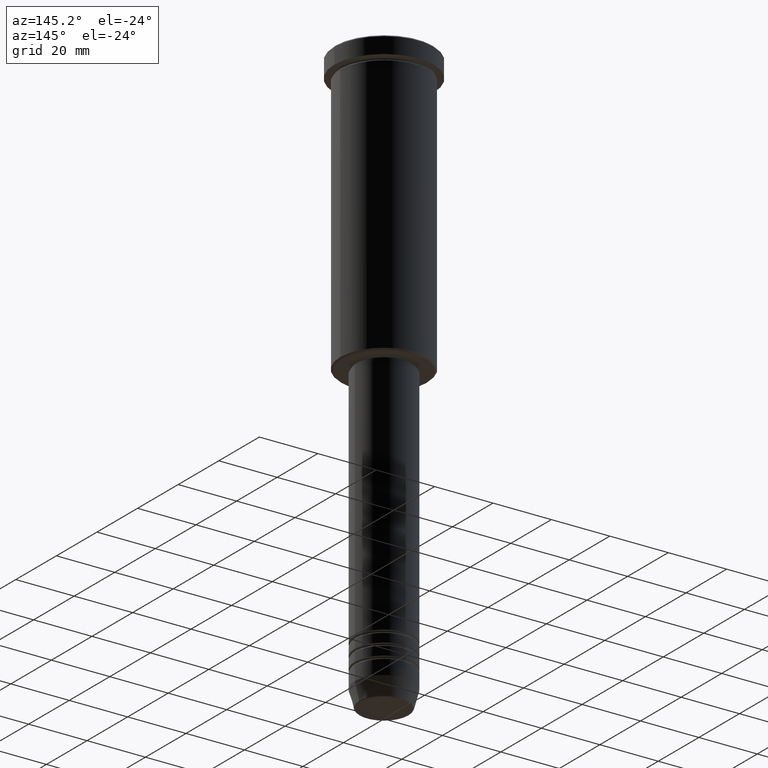
[diagram: clean part render]
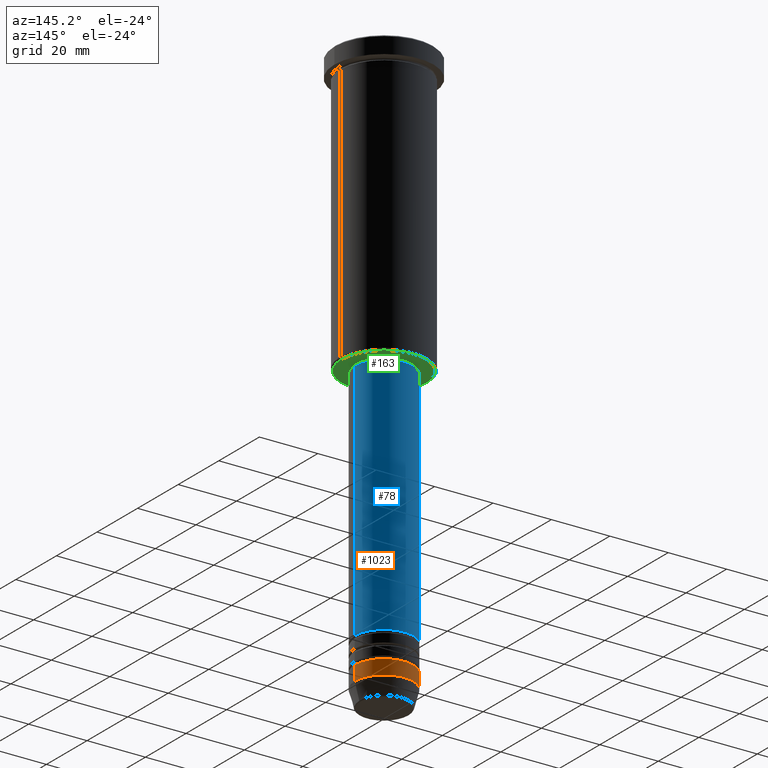
[diagram: same view with three faces highlighted in distinct colors, each labeled with its STEP entity id]
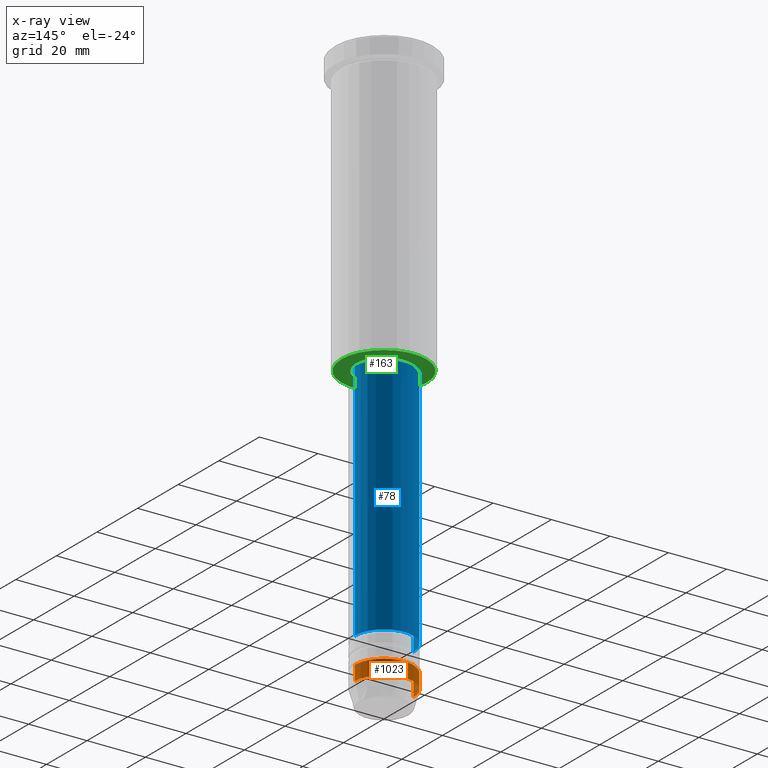
[diagram: x-ray of the same camera — body ghosted, the three highlighted faces saturated]
A machine part, auxiliary view with three faces highlighted in distinct colors.
The next image is the same camera in x-ray (body ghosted, the three faces saturated) — at least one of them is partly hidden behind the body in this view.
Their STEP definitions:

[orange] entity #1023 — the highlighted cylindrical surface (edge-blend (fillet) strip) has radius 10 mm, axis along (-0, -0, 1).
#56 = DIRECTION ( 'NONE',  ( -0.000000000000000000, -0.000000000000000000, 1.000000000000000000 ) ) ;
#77 = CARTESIAN_POINT ( 'NONE',  ( 10.00000000000000000, 0.000000000000000000, -189.0000000000000284 ) ) ;
#93 = DIRECTION ( 'NONE',  ( -0.000000000000000000, -0.000000000000000000, 1.000000000000000000 ) ) ;
#115 = ORIENTED_EDGE ( 'NONE', *, *, #417, .T. ) ;
#116 = DIRECTION ( 'NONE',  ( -0.000000000000000000, -0.000000000000000000, 1.000000000000000000 ) ) ;
#146 = VERTEX_POINT ( 'NONE', #617 ) ;
#208 = DIRECTION ( 'NONE',  ( -0.000000000000000000, -0.000000000000000000, 1.000000000000000000 ) ) ;
#211 = CARTESIAN_POINT ( 'NONE',  ( 10.00000000000000178, 0.000000000000000000, 0.000000000000000000 ) ) ;
#250 = CARTESIAN_POINT ( 'NONE',  ( -10.00000000000000000, 1.224646799147353256E-15, -189.0000000000000284 ) ) ;
#258 = VERTEX_POINT ( 'NONE', #77 ) ;
#277 = CIRCLE ( 'NONE', #424, 10.00000000000000178 ) ;
#291 = DIRECTION ( 'NONE',  ( -0.000000000000000000, -0.000000000000000000, 1.000000000000000000 ) ) ;
#296 = AXIS2_PLACEMENT_3D ( 'NONE', #688, #56, #418 ) ;
#307 = ORIENTED_EDGE ( 'NONE', *, *, #884, .T. ) ;
#352 = DIRECTION ( 'NONE',  ( 1.000000000000000000, 0.000000000000000000, 0.000000000000000000 ) ) ;
#417 = EDGE_CURVE ( 'NONE', #146, #747, #277, .T. ) ;
#418 = DIRECTION ( 'NONE',  ( 1.000000000000000000, 0.000000000000000000, 0.000000000000000000 ) ) ;
#424 = AXIS2_PLACEMENT_3D ( 'NONE', #851, #208, #668 ) ;
#475 = ORIENTED_EDGE ( 'NONE', *, *, #894, .F. ) ;
#554 = AXIS2_PLACEMENT_3D ( 'NONE', #994, #93, #352 ) ;
#564 = VERTEX_POINT ( 'NONE', #250 ) ;
#617 = CARTESIAN_POINT ( 'NONE',  ( 10.00000000000000178, 0.000000000000000000, -194.0000000000000284 ) ) ;
#656 = CIRCLE ( 'NONE', #554, 10.00000000000000000 ) ;
#666 = EDGE_CURVE ( 'NONE', #258, #564, #656, .T. ) ;
#668 = DIRECTION ( 'NONE',  ( 1.000000000000000000, 0.000000000000000000, 0.000000000000000000 ) ) ;
#670 = EDGE_LOOP ( 'NONE', ( #115, #307, #756, #475 ) ) ;
#688 = CARTESIAN_POINT ( 'NONE',  ( 0.000000000000000000, 0.000000000000000000, 0.000000000000000000 ) ) ;
#699 = FACE_OUTER_BOUND ( 'NONE', #670, .T. ) ;
#724 = CARTESIAN_POINT ( 'NONE',  ( -10.00000000000000178, 1.224646799147353454E-15, -194.0000000000000284 ) ) ;
#742 = LINE ( 'NONE', #1122, #923 ) ;
#747 = VERTEX_POINT ( 'NONE', #724 ) ;
#756 = ORIENTED_EDGE ( 'NONE', *, *, #666, .F. ) ;
#851 = CARTESIAN_POINT ( 'NONE',  ( 0.000000000000000000, 0.000000000000000000, -194.0000000000000284 ) ) ;
#874 = CYLINDRICAL_SURFACE ( 'NONE', #296, 10.00000000000000178 ) ;
#884 = EDGE_CURVE ( 'NONE', #747, #564, #742, .T. ) ;
#894 = EDGE_CURVE ( 'NONE', #146, #258, #1028, .T. ) ;
#923 = VECTOR ( 'NONE', #291, 1000.000000000000000 ) ;
#946 = VECTOR ( 'NONE', #116, 1000.000000000000000 ) ;
#994 = CARTESIAN_POINT ( 'NONE',  ( 0.000000000000000000, 0.000000000000000000, -189.0000000000000284 ) ) ;
#1023 = ADVANCED_FACE ( 'NONE', ( #699 ), #874, .T. ) ;
#1028 = LINE ( 'NONE', #211, #946 ) ;
#1122 = CARTESIAN_POINT ( 'NONE',  ( -10.00000000000000178, 1.224646799147353454E-15, 0.000000000000000000 ) ) ;

[blue] entity #78 — the highlighted cylindrical surface (edge-blend (fillet) strip) has radius 10 mm, axis along (-0, -0, 1).
#22 = LINE ( 'NONE', #292, #996 ) ;
#47 = VECTOR ( 'NONE', #565, 1000.000000000000000 ) ;
#58 = CARTESIAN_POINT ( 'NONE',  ( 0.000000000000000000, 0.000000000000000000, 0.000000000000000000 ) ) ;
#75 = CARTESIAN_POINT ( 'NONE',  ( 0.000000000000000000, 0.000000000000000000, -180.0000000000000284 ) ) ;
#78 = ADVANCED_FACE ( 'NONE', ( #1148 ), #246, .T. ) ;
#101 = AXIS2_PLACEMENT_3D ( 'NONE', #58, #690, #340 ) ;
#184 = DIRECTION ( 'NONE',  ( -0.000000000000000000, -0.000000000000000000, 1.000000000000000000 ) ) ;
#246 = CYLINDRICAL_SURFACE ( 'NONE', #101, 10.00000000000000000 ) ;
#248 = VERTEX_POINT ( 'NONE', #530 ) ;
#292 = CARTESIAN_POINT ( 'NONE',  ( -10.00000000000000000, 1.224646799147353256E-15, 0.000000000000000000 ) ) ;
#317 = CARTESIAN_POINT ( 'NONE',  ( 10.00000000000000178, 0.000000000000000000, -180.0000000000000284 ) ) ;
#327 = CARTESIAN_POINT ( 'NONE',  ( -10.00000000000000178, 1.224646799147353454E-15, -180.0000000000000284 ) ) ;
#340 = DIRECTION ( 'NONE',  ( 1.000000000000000000, 0.000000000000000000, 0.000000000000000000 ) ) ;
#379 = EDGE_CURVE ( 'NONE', #958, #248, #22, .T. ) ;
#392 = CIRCLE ( 'NONE', #924, 10.00000000000000178 ) ;
#402 = LINE ( 'NONE', #764, #47 ) ;
#405 = EDGE_LOOP ( 'NONE', ( #904, #527, #481, #965 ) ) ;
#479 = DIRECTION ( 'NONE',  ( -0.000000000000000000, -0.000000000000000000, 1.000000000000000000 ) ) ;
#481 = ORIENTED_EDGE ( 'NONE', *, *, #753, .F. ) ;
#527 = ORIENTED_EDGE ( 'NONE', *, *, #379, .T. ) ;
#530 = CARTESIAN_POINT ( 'NONE',  ( -9.999999999999998224, 1.224646799147353256E-15, -97.00000000000002842 ) ) ;
#540 = DIRECTION ( 'NONE',  ( 1.000000000000000000, 0.000000000000000000, 0.000000000000000000 ) ) ;
#565 = DIRECTION ( 'NONE',  ( -0.000000000000000000, -0.000000000000000000, 1.000000000000000000 ) ) ;
#578 = CIRCLE ( 'NONE', #732, 9.999999999999998224 ) ;
#636 = CARTESIAN_POINT ( 'NONE',  ( 0.000000000000000000, 0.000000000000000000, -97.00000000000002842 ) ) ;
#667 = VERTEX_POINT ( 'NONE', #986 ) ;
#690 = DIRECTION ( 'NONE',  ( -0.000000000000000000, -0.000000000000000000, 1.000000000000000000 ) ) ;
#709 = DIRECTION ( 'NONE',  ( 1.000000000000000000, 0.000000000000000000, 0.000000000000000000 ) ) ;
#712 = DIRECTION ( 'NONE',  ( -0.000000000000000000, -0.000000000000000000, 1.000000000000000000 ) ) ;
#732 = AXIS2_PLACEMENT_3D ( 'NONE', #636, #184, #540 ) ;
#753 = EDGE_CURVE ( 'NONE', #667, #248, #578, .T. ) ;
#764 = CARTESIAN_POINT ( 'NONE',  ( 10.00000000000000000, 0.000000000000000000, 0.000000000000000000 ) ) ;
#845 = EDGE_CURVE ( 'NONE', #978, #667, #402, .T. ) ;
#904 = ORIENTED_EDGE ( 'NONE', *, *, #1126, .T. ) ;
#924 = AXIS2_PLACEMENT_3D ( 'NONE', #75, #712, #709 ) ;
#958 = VERTEX_POINT ( 'NONE', #327 ) ;
#965 = ORIENTED_EDGE ( 'NONE', *, *, #845, .F. ) ;
#978 = VERTEX_POINT ( 'NONE', #317 ) ;
#986 = CARTESIAN_POINT ( 'NONE',  ( 9.999999999999998224, 0.000000000000000000, -97.00000000000002842 ) ) ;
#996 = VECTOR ( 'NONE', #479, 1000.000000000000000 ) ;
#1126 = EDGE_CURVE ( 'NONE', #978, #958, #392, .T. ) ;
#1148 = FACE_OUTER_BOUND ( 'NONE', #405, .T. ) ;

[green] entity #163 — the highlighted planar face has unit normal (0, 0, -1).
#10 = EDGE_CURVE ( 'NONE', #925, #853, #850, .T. ) ;
#52 = FACE_OUTER_BOUND ( 'NONE', #714, .T. ) ;
#53 = EDGE_CURVE ( 'NONE', #853, #925, #1077, .T. ) ;
#55 = ORIENTED_EDGE ( 'NONE', *, *, #1107, .T. ) ;
#61 = CIRCLE ( 'NONE', #353, 9.500000000000001776 ) ;
#122 = EDGE_CURVE ( 'NONE', #1095, #672, #61, .T. ) ;
#134 = ORIENTED_EDGE ( 'NONE', *, *, #53, .T. ) ;
#157 = CARTESIAN_POINT ( 'NONE',  ( 14.49999999999995559, 0.000000000000000000, -96.00000000000000000 ) ) ;
#163 = ADVANCED_FACE ( 'NONE', ( #52, #416 ), #781, .T. ) ;
#168 = DIRECTION ( 'NONE',  ( -0.000000000000000000, -0.000000000000000000, 1.000000000000000000 ) ) ;
#198 = EDGE_LOOP ( 'NONE', ( #55, #1007 ) ) ;
#225 = CIRCLE ( 'NONE', #735, 9.500000000000001776 ) ;
#232 = ORIENTED_EDGE ( 'NONE', *, *, #10, .T. ) ;
#257 = DIRECTION ( 'NONE',  ( -0.000000000000000000, -0.000000000000000000, 1.000000000000000000 ) ) ;
#287 = CARTESIAN_POINT ( 'NONE',  ( -14.49999999999995559, 1.806354028742343041E-15, -96.00000000000000000 ) ) ;
#329 = DIRECTION ( 'NONE',  ( 0.000000000000000000, 0.000000000000000000, -1.000000000000000000 ) ) ;
#351 = CARTESIAN_POINT ( 'NONE',  ( -9.500000000000001776, 1.163414459189985682E-15, -96.00000000000000000 ) ) ;
#353 = AXIS2_PLACEMENT_3D ( 'NONE', #432, #168, #428 ) ;
#416 = FACE_BOUND ( 'NONE', #198, .T. ) ;
#421 = CARTESIAN_POINT ( 'NONE',  ( 0.000000000000000000, 0.000000000000000000, -96.00000000000000000 ) ) ;
#428 = DIRECTION ( 'NONE',  ( 1.000000000000000000, 0.000000000000000000, 0.000000000000000000 ) ) ;
#432 = CARTESIAN_POINT ( 'NONE',  ( 0.000000000000000000, 0.000000000000000000, -96.00000000000000000 ) ) ;
#523 = AXIS2_PLACEMENT_3D ( 'NONE', #797, #597, #793 ) ;
#597 = DIRECTION ( 'NONE',  ( 0.000000000000000000, 0.000000000000000000, -1.000000000000000000 ) ) ;
#607 = CARTESIAN_POINT ( 'NONE',  ( 0.000000000000000000, 15.00000000000000000, -96.00000000000000000 ) ) ;
#643 = CARTESIAN_POINT ( 'NONE',  ( 9.500000000000001776, 0.000000000000000000, -96.00000000000000000 ) ) ;
#672 = VERTEX_POINT ( 'NONE', #643 ) ;
#714 = EDGE_LOOP ( 'NONE', ( #232, #134 ) ) ;
#735 = AXIS2_PLACEMENT_3D ( 'NONE', #815, #257, #794 ) ;
#781 = PLANE ( 'NONE',  #1012 ) ;
#793 = DIRECTION ( 'NONE',  ( -1.000000000000000000, 0.000000000000000000, 0.000000000000000000 ) ) ;
#794 = DIRECTION ( 'NONE',  ( 1.000000000000000000, 0.000000000000000000, 0.000000000000000000 ) ) ;
#797 = CARTESIAN_POINT ( 'NONE',  ( 0.000000000000000000, 0.000000000000000000, -96.00000000000000000 ) ) ;
#815 = CARTESIAN_POINT ( 'NONE',  ( 0.000000000000000000, 0.000000000000000000, -96.00000000000000000 ) ) ;
#850 = CIRCLE ( 'NONE', #523, 14.49999999999995559 ) ;
#853 = VERTEX_POINT ( 'NONE', #287 ) ;
#925 = VERTEX_POINT ( 'NONE', #157 ) ;
#951 = AXIS2_PLACEMENT_3D ( 'NONE', #421, #329, #1153 ) ;
#995 = DIRECTION ( 'NONE',  ( -1.000000000000000000, 0.000000000000000000, -0.000000000000000000 ) ) ;
#1007 = ORIENTED_EDGE ( 'NONE', *, *, #122, .T. ) ;
#1012 = AXIS2_PLACEMENT_3D ( 'NONE', #607, #1101, #995 ) ;
#1077 = CIRCLE ( 'NONE', #951, 14.49999999999995559 ) ;
#1095 = VERTEX_POINT ( 'NONE', #351 ) ;
#1101 = DIRECTION ( 'NONE',  ( 0.000000000000000000, 0.000000000000000000, -1.000000000000000000 ) ) ;
#1107 = EDGE_CURVE ( 'NONE', #672, #1095, #225, .T. ) ;
#1153 = DIRECTION ( 'NONE',  ( -1.000000000000000000, 0.000000000000000000, 0.000000000000000000 ) ) ;